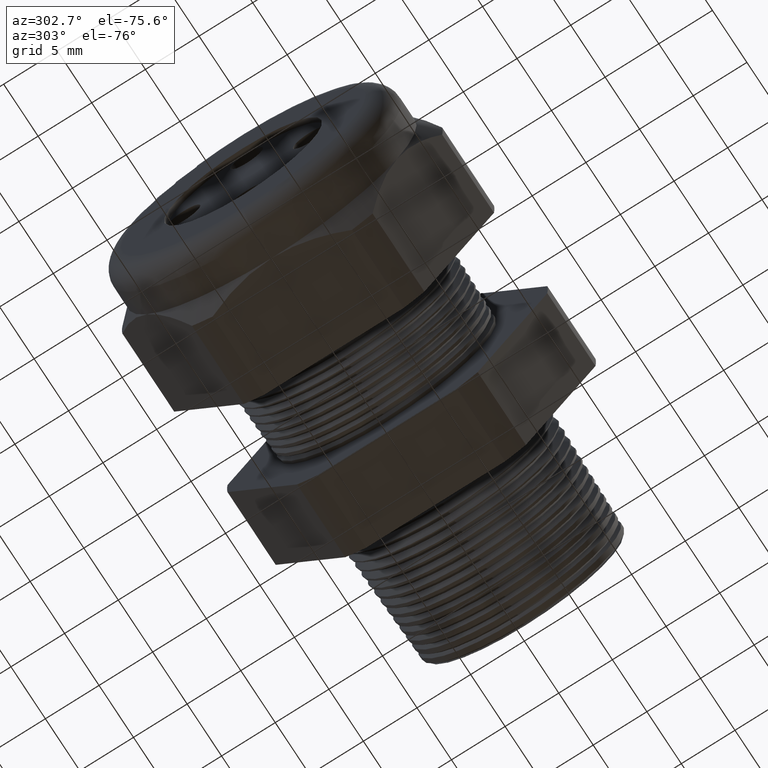
[diagram: clean part render]
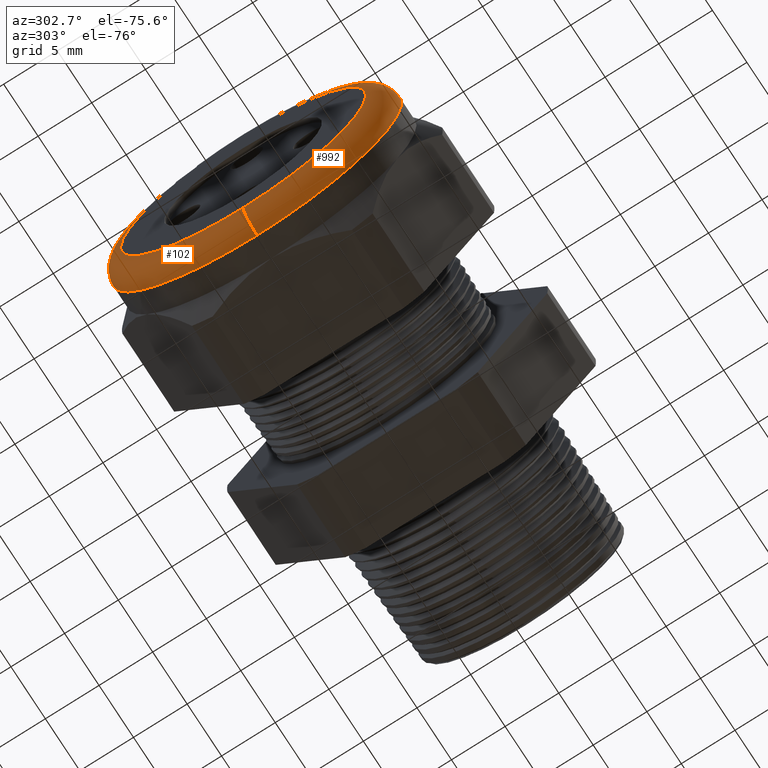
[diagram: same view with one multi-face feature highlighted, each face labeled with its STEP entity id]
A machine part, auxiliary view. The highlighted faces form ONE feature: a constant-radius fillet chain: 2 tangent blend faces with common blend radius 2.032 mm. The faces share edges in the B-rep.
Their STEP definitions:
[1] entity #992 (Torus):
#88 = VERTEX_POINT ( 'NONE', #2024 ) ;
#91 = EDGE_CURVE ( 'NONE', #88, #94, #2090, .T. ) ;
#92 = VERTEX_POINT ( 'NONE', #2085 ) ;
#94 = VERTEX_POINT ( 'NONE', #2079 ) ;
#96 = EDGE_CURVE ( 'NONE', #98, #92, #2072, .T. ) ;
#98 = VERTEX_POINT ( 'NONE', #2068 ) ;
#773 = EDGE_CURVE ( 'NONE', #94, #92, #3396, .T. ) ;
#786 = EDGE_CURVE ( 'NONE', #98, #88, #3445, .T. ) ;
#922 = ORIENTED_EDGE ( 'NONE', *, *, #773, .F. ) ;
#992 = ADVANCED_FACE ( 'NONE', ( #3722 ), #3721, .T. ) ;
#993 = EDGE_LOOP ( 'NONE', ( #994, #995, #996, #922 ) ) ;
#994 = ORIENTED_EDGE ( 'NONE', *, *, #91, .F. ) ;
#995 = ORIENTED_EDGE ( 'NONE', *, *, #786, .F. ) ;
#996 = ORIENTED_EDGE ( 'NONE', *, *, #96, .T. ) ;
#2024 = CARTESIAN_POINT ( 'NONE',  ( -1.330000000000000100, 0.0000000000000000000, -0.5300000000000001400 ) ) ;
#2068 = CARTESIAN_POINT ( 'NONE',  ( -1.330000000000000100, 6.490628035480972400E-017, 0.5300000000000001400 ) ) ;
#2069 = DIRECTION ( 'NONE',  ( 0.0000000000000000000, 0.0000000000000000000, -1.000000000000000000 ) ) ;
#2070 = DIRECTION ( 'NONE',  ( 0.0000000000000000000, -1.000000000000000000, 0.0000000000000000000 ) ) ;
#2071 = AXIS2_PLACEMENT_3D ( 'NONE', #2078, #2070, #2069 ) ;
#2072 = CIRCLE ( 'NONE', #2071, 0.07999999999999996000 ) ;
#2078 = CARTESIAN_POINT ( 'NONE',  ( -1.330000000000000100, 0.0000000000000000000, 0.4500000000000001200 ) ) ;
#2079 = CARTESIAN_POINT ( 'NONE',  ( -1.409999999999999900, 6.000769315822032200E-017, -0.4500000000000001200 ) ) ;
#2085 = CARTESIAN_POINT ( 'NONE',  ( -1.409999999999999900, 0.0000000000000000000, 0.4500000000000001200 ) ) ;
#2086 = DIRECTION ( 'NONE',  ( 0.0000000000000000000, -1.224646799147353900E-016, 1.000000000000000000 ) ) ;
#2087 = DIRECTION ( 'NONE',  ( 0.0000000000000000000, 1.000000000000000000, 1.224646799147353200E-016 ) ) ;
#2088 = CARTESIAN_POINT ( 'NONE',  ( -1.330000000000000100, 5.510910596163090800E-017, -0.4500000000000001200 ) ) ;
#2089 = AXIS2_PLACEMENT_3D ( 'NONE', #2088, #2087, #2086 ) ;
#2090 = CIRCLE ( 'NONE', #2089, 0.07999999999999996000 ) ;
#3392 = DIRECTION ( 'NONE',  ( 0.0000000000000000000, 0.0000000000000000000, 1.000000000000000000 ) ) ;
#3393 = DIRECTION ( 'NONE',  ( -1.000000000000000000, 0.0000000000000000000, 0.0000000000000000000 ) ) ;
#3394 = CARTESIAN_POINT ( 'NONE',  ( -1.409999999999999900, 0.0000000000000000000, 0.0000000000000000000 ) ) ;
#3395 = AXIS2_PLACEMENT_3D ( 'NONE', #3394, #3393, #3392 ) ;
#3396 = CIRCLE ( 'NONE', #3395, 0.4500000000000001200 ) ;
#3442 = DIRECTION ( 'NONE',  ( 0.0000000000000000000, 0.0000000000000000000, 1.000000000000000000 ) ) ;
#3443 = DIRECTION ( 'NONE',  ( 1.000000000000000000, 0.0000000000000000000, 0.0000000000000000000 ) ) ;
#3444 = AXIS2_PLACEMENT_3D ( 'NONE', #3450, #3443, #3442 ) ;
#3445 = CIRCLE ( 'NONE', #3444, 0.5300000000000001400 ) ;
#3450 = CARTESIAN_POINT ( 'NONE',  ( -1.330000000000000100, 0.0000000000000000000, 0.0000000000000000000 ) ) ;
#3717 = DIRECTION ( 'NONE',  ( 0.0000000000000000000, 0.0000000000000000000, 1.000000000000000000 ) ) ;
#3718 = DIRECTION ( 'NONE',  ( -1.000000000000000000, 0.0000000000000000000, 0.0000000000000000000 ) ) ;
#3719 = AXIS2_PLACEMENT_3D ( 'NONE', #3726, #3718, #3717 ) ;
#3721 = TOROIDAL_SURFACE ( 'NONE', #3719, 0.4500000000000001200, 0.08000000000000000200 ) ;
#3722 = FACE_OUTER_BOUND ( 'NONE', #993, .T. ) ;
#3726 = CARTESIAN_POINT ( 'NONE',  ( -1.330000000000000100, 0.0000000000000000000, 0.0000000000000000000 ) ) ;
[2] entity #102 (Torus):
#62 = EDGE_LOOP ( 'NONE', ( #100, #89, #97, #90 ) ) ;
#88 = VERTEX_POINT ( 'NONE', #2024 ) ;
#89 = ORIENTED_EDGE ( 'NONE', *, *, #91, .T. ) ;
#90 = ORIENTED_EDGE ( 'NONE', *, *, #96, .F. ) ;
#91 = EDGE_CURVE ( 'NONE', #88, #94, #2090, .T. ) ;
#92 = VERTEX_POINT ( 'NONE', #2085 ) ;
#93 = EDGE_CURVE ( 'NONE', #92, #94, #2084, .T. ) ;
#94 = VERTEX_POINT ( 'NONE', #2079 ) ;
#96 = EDGE_CURVE ( 'NONE', #98, #92, #2072, .T. ) ;
#97 = ORIENTED_EDGE ( 'NONE', *, *, #93, .F. ) ;
#98 = VERTEX_POINT ( 'NONE', #2068 ) ;
#99 = EDGE_CURVE ( 'NONE', #88, #98, #2067, .T. ) ;
#100 = ORIENTED_EDGE ( 'NONE', *, *, #99, .F. ) ;
#102 = ADVANCED_FACE ( 'NONE', ( #2061 ), #2057, .T. ) ;
#2024 = CARTESIAN_POINT ( 'NONE',  ( -1.330000000000000100, 0.0000000000000000000, -0.5300000000000001400 ) ) ;
#2055 = CARTESIAN_POINT ( 'NONE',  ( -1.330000000000000100, 0.0000000000000000000, 0.0000000000000000000 ) ) ;
#2056 = AXIS2_PLACEMENT_3D ( 'NONE', #2055, #2060, #2119 ) ;
#2057 = TOROIDAL_SURFACE ( 'NONE', #2056, 0.4500000000000001200, 0.08000000000000000200 ) ;
#2060 = DIRECTION ( 'NONE',  ( -1.000000000000000000, 0.0000000000000000000, 0.0000000000000000000 ) ) ;
#2061 = FACE_OUTER_BOUND ( 'NONE', #62, .T. ) ;
#2063 = DIRECTION ( 'NONE',  ( 0.0000000000000000000, 0.0000000000000000000, 1.000000000000000000 ) ) ;
#2064 = DIRECTION ( 'NONE',  ( 1.000000000000000000, 0.0000000000000000000, 0.0000000000000000000 ) ) ;
#2065 = CARTESIAN_POINT ( 'NONE',  ( -1.330000000000000100, 0.0000000000000000000, 0.0000000000000000000 ) ) ;
#2066 = AXIS2_PLACEMENT_3D ( 'NONE', #2065, #2064, #2063 ) ;
#2067 = CIRCLE ( 'NONE', #2066, 0.5300000000000001400 ) ;
#2068 = CARTESIAN_POINT ( 'NONE',  ( -1.330000000000000100, 6.490628035480972400E-017, 0.5300000000000001400 ) ) ;
#2069 = DIRECTION ( 'NONE',  ( 0.0000000000000000000, 0.0000000000000000000, -1.000000000000000000 ) ) ;
#2070 = DIRECTION ( 'NONE',  ( 0.0000000000000000000, -1.000000000000000000, 0.0000000000000000000 ) ) ;
#2071 = AXIS2_PLACEMENT_3D ( 'NONE', #2078, #2070, #2069 ) ;
#2072 = CIRCLE ( 'NONE', #2071, 0.07999999999999996000 ) ;
#2078 = CARTESIAN_POINT ( 'NONE',  ( -1.330000000000000100, 0.0000000000000000000, 0.4500000000000001200 ) ) ;
#2079 = CARTESIAN_POINT ( 'NONE',  ( -1.409999999999999900, 6.000769315822032200E-017, -0.4500000000000001200 ) ) ;
#2080 = DIRECTION ( 'NONE',  ( 0.0000000000000000000, 0.0000000000000000000, 1.000000000000000000 ) ) ;
#2081 = DIRECTION ( 'NONE',  ( -1.000000000000000000, 0.0000000000000000000, 0.0000000000000000000 ) ) ;
#2082 = CARTESIAN_POINT ( 'NONE',  ( -1.409999999999999900, 0.0000000000000000000, 0.0000000000000000000 ) ) ;
#2083 = AXIS2_PLACEMENT_3D ( 'NONE', #2082, #2081, #2080 ) ;
#2084 = CIRCLE ( 'NONE', #2083, 0.4500000000000001200 ) ;
#2085 = CARTESIAN_POINT ( 'NONE',  ( -1.409999999999999900, 0.0000000000000000000, 0.4500000000000001200 ) ) ;
#2086 = DIRECTION ( 'NONE',  ( 0.0000000000000000000, -1.224646799147353900E-016, 1.000000000000000000 ) ) ;
#2087 = DIRECTION ( 'NONE',  ( 0.0000000000000000000, 1.000000000000000000, 1.224646799147353200E-016 ) ) ;
#2088 = CARTESIAN_POINT ( 'NONE',  ( -1.330000000000000100, 5.510910596163090800E-017, -0.4500000000000001200 ) ) ;
#2089 = AXIS2_PLACEMENT_3D ( 'NONE', #2088, #2087, #2086 ) ;
#2090 = CIRCLE ( 'NONE', #2089, 0.07999999999999996000 ) ;
#2119 = DIRECTION ( 'NONE',  ( 0.0000000000000000000, 0.0000000000000000000, 1.000000000000000000 ) ) ;